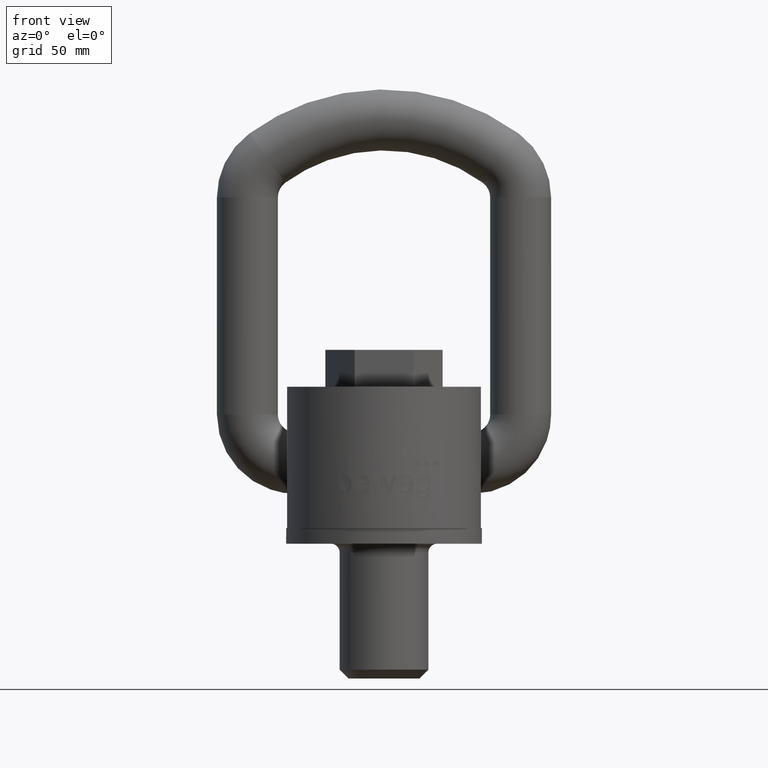
[diagram: clean part render]
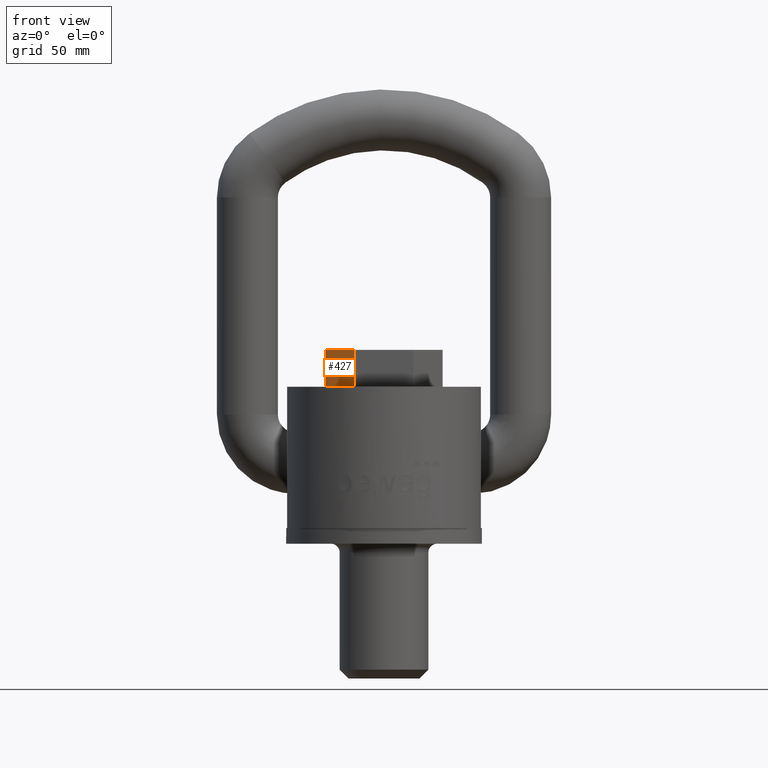
[diagram: same view with one face highlighted and labeled with its STEP entity id]
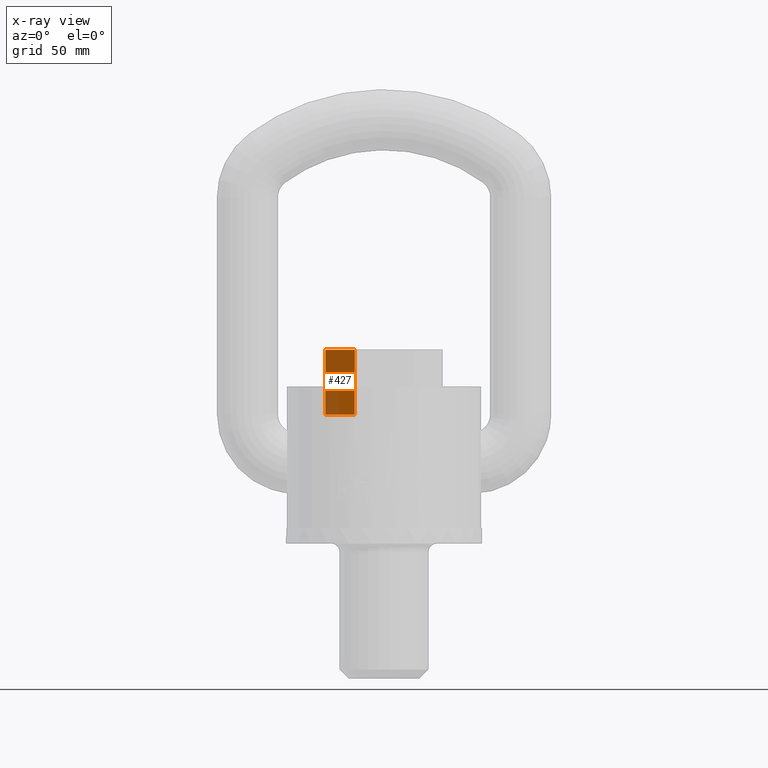
[diagram: x-ray of the same camera — body ghosted, the highlighted face saturated]
A machine part, front view. The second image highlights one B-rep face of the part: STEP entity #427.
The next image is the same camera in x-ray: the body ghosted, the highlighted face saturated — about 20% of this face is hidden behind the body in this view.
In plain terms, the highlighted planar face has unit normal (0.866, 0.5, 0).
Its self-contained STEP definition (entity closure, byte-faithful):
#251=PLANE('',#2537);
#314=FACE_OUTER_BOUND('',#660,.T.);
#427=ADVANCED_FACE('',(#314),#251,.F.);
#660=EDGE_LOOP('',(#1270,#1271,#1272,#1273));
#823=LINE('',#3820,#955);
#829=LINE('',#3833,#961);
#830=LINE('',#3835,#962);
#831=LINE('',#3837,#963);
#955=VECTOR('',#2745,1.);
#961=VECTOR('',#2753,1.);
#962=VECTOR('',#2754,1.);
#963=VECTOR('',#2755,1.);
#1270=ORIENTED_EDGE('',*,*,#2092,.T.);
#1271=ORIENTED_EDGE('',*,*,#2098,.F.);
#1272=ORIENTED_EDGE('',*,*,#2099,.F.);
#1273=ORIENTED_EDGE('',*,*,#2100,.T.);
#1870=VERTEX_POINT('',#3821);
#1871=VERTEX_POINT('',#3822);
#1876=VERTEX_POINT('',#3834);
#1877=VERTEX_POINT('',#3836);
#2092=EDGE_CURVE('',#1870,#1871,#823,.T.);
#2098=EDGE_CURVE('',#1876,#1871,#829,.T.);
#2099=EDGE_CURVE('',#1877,#1876,#830,.T.);
#2100=EDGE_CURVE('',#1877,#1870,#831,.T.);
#2537=AXIS2_PLACEMENT_3D('',#3838,#2756,#2757);
#2745=DIRECTION('',(0.5,-0.866025403784438,0.));
#2753=DIRECTION('',(0.,0.,-1.));
#2754=DIRECTION('',(0.5,-0.866025403784438,0.));
#2755=DIRECTION('',(0.,0.,-1.));
#2756=DIRECTION('',(0.866025403784439,0.5,0.));
#2757=DIRECTION('',(-0.5,0.866025403784439,0.));
#3820=CARTESIAN_POINT('',(-31.7542648054294,-2.1316282072803E-14,61.5));
#3821=CARTESIAN_POINT('',(-31.7542648054294,-2.1316282072803E-14,61.5));
#3822=CARTESIAN_POINT('',(-15.8771324027147,-27.5,61.5));
#3833=CARTESIAN_POINT('',(-15.8771324027147,-27.5,96.5));
#3834=CARTESIAN_POINT('',(-15.8771324027147,-27.5,96.5));
#3835=CARTESIAN_POINT('',(-31.7542648054294,-2.1316282072803E-14,96.5));
#3836=CARTESIAN_POINT('',(-31.7542648054294,-2.1316282072803E-14,96.5));
#3837=CARTESIAN_POINT('',(-31.7542648054294,-2.1316282072803E-14,96.5));
#3838=CARTESIAN_POINT('',(-31.7542648054294,-2.1316282072803E-14,96.5));